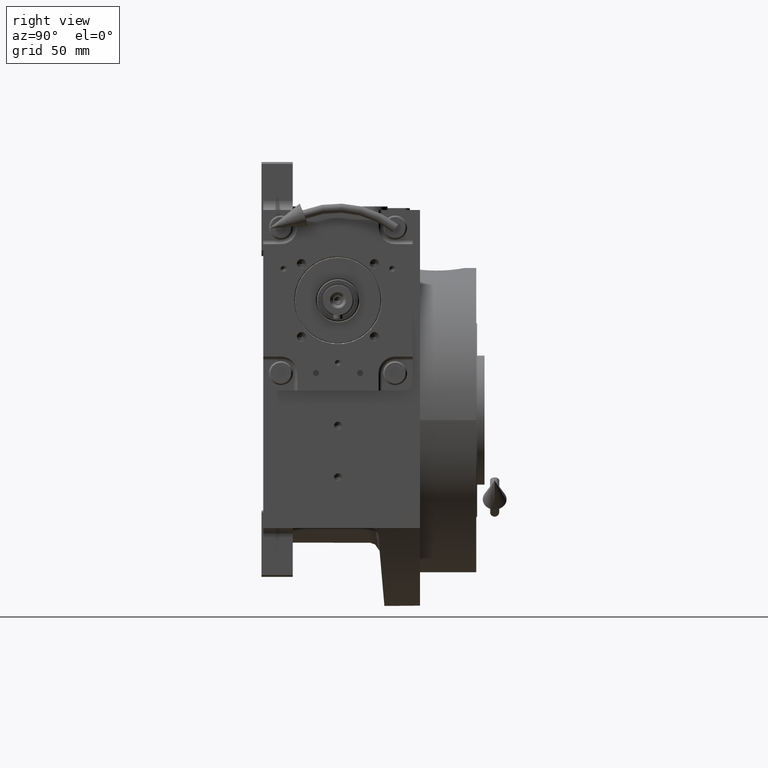
[diagram: clean part render]
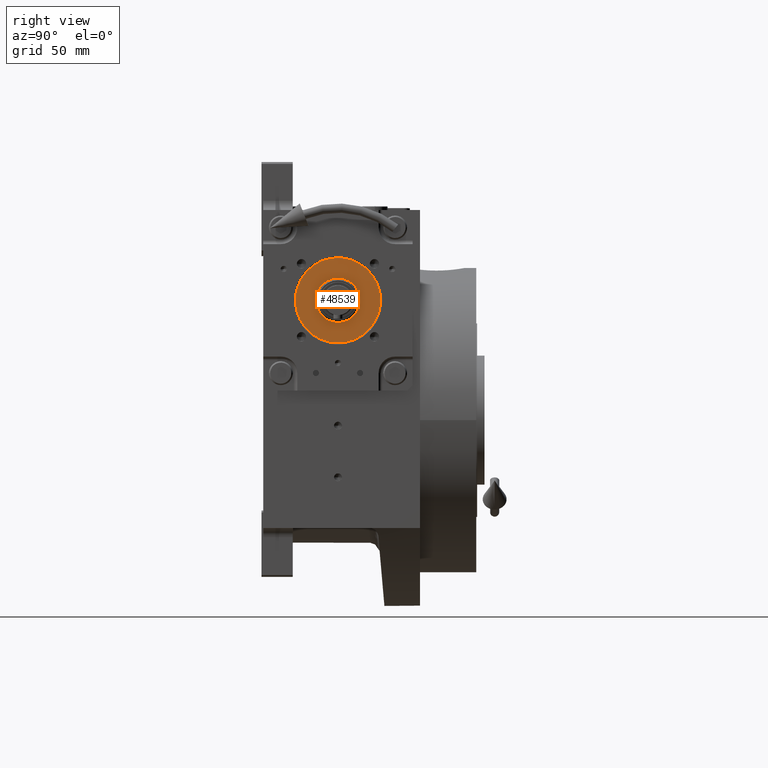
[diagram: same view with one face highlighted and labeled with its STEP entity id]
A machine part, right view. The second image highlights one B-rep face of the part: STEP entity #48539.
In plain terms, the highlighted planar face has unit normal (-1, 0, -0).
Its self-contained STEP definition (entity closure, byte-faithful):
#356 = VERTEX_POINT ( 'NONE', #62205 ) ;
#438 = CARTESIAN_POINT ( 'NONE',  ( -23.09585468350323012, 7.000000000000148326, -13.52923811714202884 ) ) ;
#469 = CARTESIAN_POINT ( 'NONE',  ( 23.09585401869739840, 6.999999542324802704, 2.173331782437690894E-08 ) ) ;
#762 = AXIS2_PLACEMENT_3D ( 'NONE', #50893, #43026, #33038 ) ;
#1150 = ORIENTED_EDGE ( 'NONE', *, *, #49399, .T. ) ;
#4040 = DIRECTION ( 'NONE',  ( -2.052305267934724706E-16, -1.000000000000000000, -5.115350721226505605E-15 ) ) ;
#4386 = CARTESIAN_POINT ( 'NONE',  ( -8.974545794016020039E-07, 6.999999999999943157, 23.09585494913718051 ) ) ;
#4992 = FACE_OUTER_BOUND ( 'NONE', #51566, .T. ) ;
#4996 = CARTESIAN_POINT ( 'NONE',  ( -23.09585573493668065, 7.000000000000073719, 13.52923849051281024 ) ) ;
#5728 = CARTESIAN_POINT ( 'NONE',  ( 23.09585573493666999, 6.999999999999936939, -13.52923890735006651 ) ) ;
#6974 = EDGE_CURVE ( 'NONE', #21418, #356, #24882, .T. ) ;
#9868 = CARTESIAN_POINT ( 'NONE',  ( 23.09585468350323723, 6.999999999999864109, 13.52923853397943077 ) ) ;
#14044 = CARTESIAN_POINT ( 'NONE',  ( -13.52923841247534931, 7.000000000000130562, -23.09585443615133116 ) ) ;
#16319 = CARTESIAN_POINT ( 'NONE',  ( 12.04009600442749317, 7.000000000000006217, 5.986840029364933116E-14 ) ) ;
#16360 = ORIENTED_EDGE ( 'NONE', *, *, #6974, .T. ) ;
#17293 = CIRCLE ( 'NONE', #762, 12.04009600442785732 ) ;
#20234 = EDGE_CURVE ( 'NONE', #23848, #49060, #60026, .T. ) ;
#21363 = CARTESIAN_POINT ( 'NONE',  ( 23.09585401869739840, 6.999999542324802704, 2.173331782437690894E-08 ) ) ;
#21418 = VERTEX_POINT ( 'NONE', #27478 ) ;
#21900 = ORIENTED_EDGE ( 'NONE', *, *, #55878, .T. ) ;
#23848 = VERTEX_POINT ( 'NONE', #16319 ) ;
#24382 = CARTESIAN_POINT ( 'NONE',  ( -23.09585401869729182, 6.999999542325357815, -2.173323981794039651E-08 ) ) ;
#24882 =( BOUNDED_CURVE ( )  B_SPLINE_CURVE ( 3, ( #58346, #14044, #438, #33760 ),
 .UNSPECIFIED., .F., .F. ) 
 B_SPLINE_CURVE_WITH_KNOTS ( ( 4, 4 ),
 ( 1.062202122874949861, 2.632998440204151525 ),
 .UNSPECIFIED. ) 
 CURVE ( )  GEOMETRIC_REPRESENTATION_ITEM ( )  RATIONAL_B_SPLINE_CURVE ( ( 1.000000000000000000, 0.8047378563554508091, 0.8047378563554508091, 1.000000000000000000 ) ) 
 REPRESENTATION_ITEM ( '' )  );
#27478 = CARTESIAN_POINT ( 'NONE',  ( -2.619432448724978713E-13, 7.000000000000069278, -23.09585494913709880 ) ) ;
#29255 = DIRECTION ( 'NONE',  ( -1.000000000000000000, 2.052305267934827011E-16, -1.998401444325258896E-15 ) ) ;
#29765 = CARTESIAN_POINT ( 'NONE',  ( 0.000000000000000000, 7.000000000000006217, 3.669563346828540415E-14 ) ) ;
#30578 = ORIENTED_EDGE ( 'NONE', *, *, #20234, .F. ) ;
#30687 = CARTESIAN_POINT ( 'NONE',  ( -12.04009600442772232, 7.000000000000006217, 1.125501430241480170E-14 ) ) ;
#33038 = DIRECTION ( 'NONE',  ( 1.000000000000000000, 0.000000000000000000, 2.072169827847571263E-15 ) ) ;
#33760 = CARTESIAN_POINT ( 'NONE',  ( -23.09585401869729182, 6.999999542325357815, -2.173323981794039651E-08 ) ) ;
#38722 = CARTESIAN_POINT ( 'NONE',  ( -2.619432448724978713E-13, 7.000000000000069278, -23.09585494913709880 ) ) ;
#39260 = PLANE ( 'NONE',  #45484 ) ;
#39265 = CARTESIAN_POINT ( 'NONE',  ( -13.52923972676702213, 7.000000000000004441, 23.09585493640610210 ) ) ;
#39443 =( BOUNDED_CURVE ( )  B_SPLINE_CURVE ( 3, ( #50045, #5728, #63304, #38722 ),
 .UNSPECIFIED., .F., .F. ) 
 B_SPLINE_CURVE_WITH_KNOTS ( ( 4, 4 ),
 ( 5.774591035009672524, 7.345387430054536537 ),
 .UNSPECIFIED. ) 
 CURVE ( )  GEOMETRIC_REPRESENTATION_ITEM ( )  RATIONAL_B_SPLINE_CURVE ( ( 1.000000000000000000, 0.8047378380376930540, 0.8047378380376930540, 1.000000000000000000 ) ) 
 REPRESENTATION_ITEM ( '' )  );
#42276 = ORIENTED_EDGE ( 'NONE', *, *, #63457, .T. ) ;
#43026 = DIRECTION ( 'NONE',  ( 2.153350692136698736E-17, -1.000000000000000000, -5.115350721226503239E-15 ) ) ;
#45484 = AXIS2_PLACEMENT_3D ( 'NONE', #62886, #4040, #29255 ) ;
#47316 = VERTEX_POINT ( 'NONE', #21363 ) ;
#48539 = ADVANCED_FACE ( 'NONE', ( #4992, #59000 ), #39260, .F. ) ;
#49060 = VERTEX_POINT ( 'NONE', #30687 ) ;
#49399 = EDGE_CURVE ( 'NONE', #47316, #21418, #39443, .T. ) ;
#50045 = CARTESIAN_POINT ( 'NONE',  ( 23.09585401869739840, 6.999999542324802704, 2.173331782437690894E-08 ) ) ;
#50893 = CARTESIAN_POINT ( 'NONE',  ( 0.000000000000000000, 7.000000000000006217, 3.491927662888514737E-14 ) ) ;
#51566 = EDGE_LOOP ( 'NONE', ( #1150, #16360, #21900 ) ) ;
#54055 = DIRECTION ( 'NONE',  ( 1.000000000000000000, 0.000000000000000000, 1.924633060802941795E-15 ) ) ;
#55514 =( BOUNDED_CURVE ( )  B_SPLINE_CURVE ( 3, ( #24382, #4996, #39265, #4386, #58686, #9868, #469 ),
 .UNSPECIFIED., .F., .F. ) 
 B_SPLINE_CURVE_WITH_KNOTS ( ( 4, 3, 4 ),
 ( 2.632998397732654983, 4.203794753919688709, 5.774591110106721992 ),
 .UNSPECIFIED. ) 
 CURVE ( )  GEOMETRIC_REPRESENTATION_ITEM ( )  RATIONAL_B_SPLINE_CURVE ( ( 1.000000000000000000, 0.8047378471965718205, 0.8047378471965718205, 1.000000000000000000, 0.8047378471965718205, 0.8047378471965718205, 1.000000000000000000 ) ) 
 REPRESENTATION_ITEM ( '' )  );
#55878 = EDGE_CURVE ( 'NONE', #356, #47316, #55514, .T. ) ;
#55933 = AXIS2_PLACEMENT_3D ( 'NONE', #29765, #59542, #54055 ) ;
#58346 = CARTESIAN_POINT ( 'NONE',  ( -2.619432448724978713E-13, 7.000000000000069278, -23.09585494913709880 ) ) ;
#58686 = CARTESIAN_POINT ( 'NONE',  ( 13.52923793185785861, 6.999999999999880984, 23.09585496186825893 ) ) ;
#58935 = EDGE_LOOP ( 'NONE', ( #30578, #42276 ) ) ;
#59000 = FACE_BOUND ( 'NONE', #58935, .T. ) ;
#59542 = DIRECTION ( 'NONE',  ( -2.153350692136698736E-17, 1.000000000000000000, 5.115350721226503239E-15 ) ) ;
#60026 = CIRCLE ( 'NONE', #55933, 12.04009600442783778 ) ;
#62205 = CARTESIAN_POINT ( 'NONE',  ( -23.09585401869729182, 6.999999542325357815, -2.173323981794039651E-08 ) ) ;
#62886 = CARTESIAN_POINT ( 'NONE',  ( 0.000000000000000000, 7.000000000000006217, 3.580745504858527891E-14 ) ) ;
#63304 = CARTESIAN_POINT ( 'NONE',  ( 13.52923924614951012, 7.000000000000008882, -23.09585546212291263 ) ) ;
#63457 = EDGE_CURVE ( 'NONE', #23848, #49060, #17293, .T. ) ;